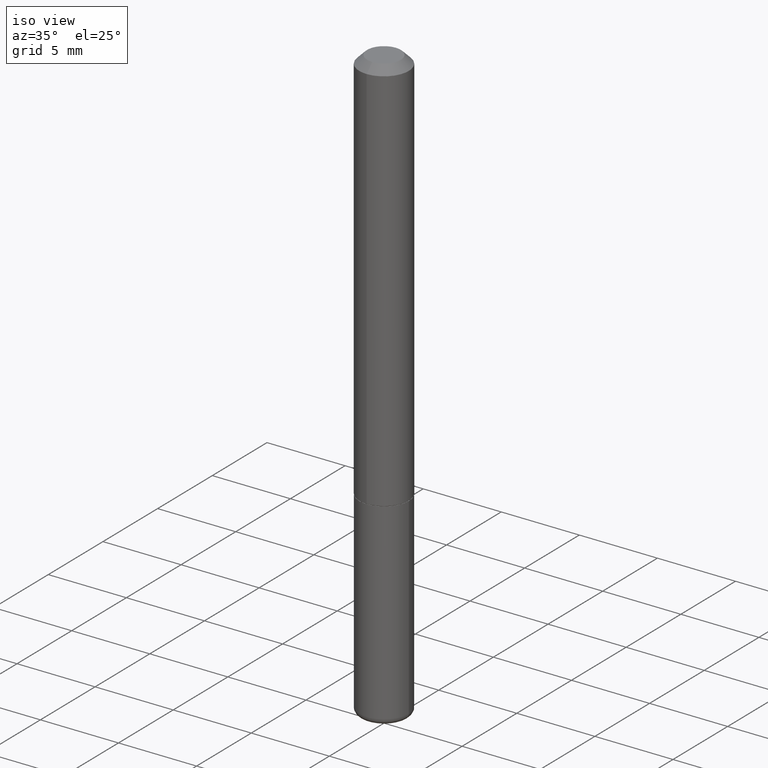
[diagram: clean part render]
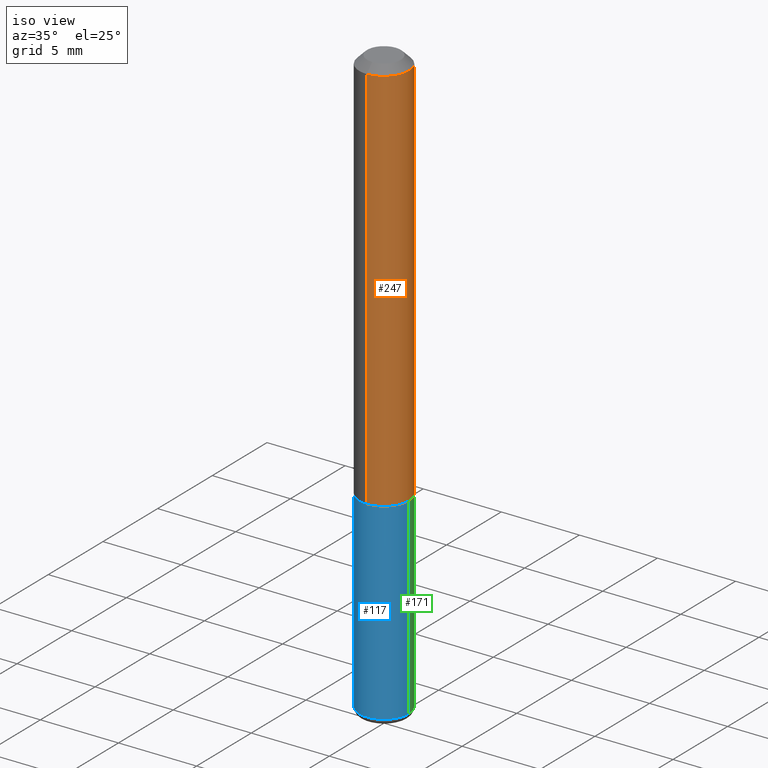
[diagram: same view with three faces highlighted in distinct colors, each labeled with its STEP entity id]
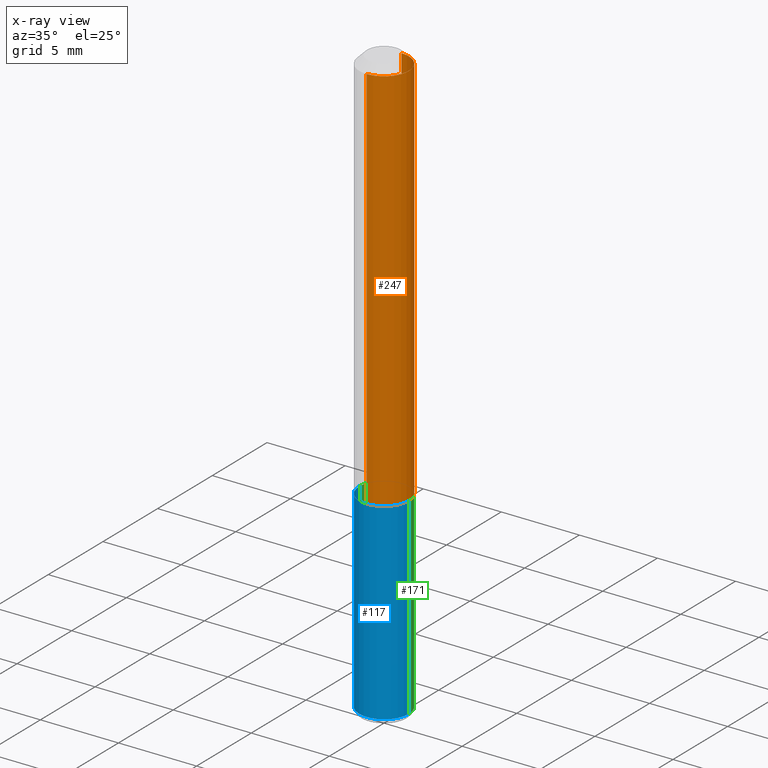
[diagram: x-ray of the same camera — body ghosted, the three highlighted faces saturated]
A machine part, iso view with three faces highlighted in distinct colors.
The next image is the same camera in x-ray (body ghosted, the three faces saturated) — at least one of them is partly hidden behind the body in this view.
Their STEP definitions:

[orange] entity #247 — the highlighted cylindrical surface (edge-blend (fillet) strip) has radius 1.5875 mm, axis along (-0, 0, 1).
#16 = CARTESIAN_POINT ( 'NONE',  ( 2.420431046656757310E-29, -3.520343303691815911E-15, -0.9989999999999998881 ) ) ;
#19 = DIRECTION ( 'NONE',  ( -2.422853900557315141E-29, 3.523867170862678489E-15, 1.000000000000000000 ) ) ;
#26 = CARTESIAN_POINT ( 'NONE',  ( 4.440892098500754352E-16, 0.06249999999999659994, -0.9990000000000002212 ) ) ;
#30 = DIRECTION ( 'NONE',  ( -6.982962677686266711E-15, -1.000000000000000000, 3.523867170862678884E-15 ) ) ;
#45 = CARTESIAN_POINT ( 'NONE',  ( 4.440892098500628134E-16, 0.06250000000000002776, -2.202416981789175288E-16 ) ) ;
#62 = VERTEX_POINT ( 'NONE', #108 ) ;
#76 = VECTOR ( 'NONE', #304, 39.37007874015748143 ) ;
#85 = VERTEX_POINT ( 'NONE', #104 ) ;
#91 = DIRECTION ( 'NONE',  ( -2.422853900557315141E-29, 3.523867170862678489E-15, 1.000000000000000000 ) ) ;
#97 = EDGE_CURVE ( 'NONE', #352, #260, #334, .T. ) ;
#104 = CARTESIAN_POINT ( 'NONE',  ( -4.364351673553682501E-16, -0.06250000000000363598, -0.9989999999999996660 ) ) ;
#108 = CARTESIAN_POINT ( 'NONE',  ( -4.287811248607198352E-16, -0.06250000000000001388, -0.01999999999999984776 ) ) ;
#114 = FACE_OUTER_BOUND ( 'NONE', #319, .T. ) ;
#122 = ORIENTED_EDGE ( 'NONE', *, *, #97, .T. ) ;
#128 = CARTESIAN_POINT ( 'NONE',  ( 0.000000000000000000, 0.000000000000000000, 0.000000000000000000 ) ) ;
#130 = CARTESIAN_POINT ( 'NONE',  ( 4.364351673553917187E-16, 0.06249999999999988204, -0.02000000000000029185 ) ) ;
#141 = EDGE_CURVE ( 'NONE', #62, #260, #365, .T. ) ;
#147 = EDGE_CURVE ( 'NONE', #85, #62, #245, .T. ) ;
#150 = DIRECTION ( 'NONE',  ( -2.422853900557315141E-29, 3.523867170862678489E-15, 1.000000000000000000 ) ) ;
#152 = CARTESIAN_POINT ( 'NONE',  ( 4.845707801114646817E-31, -7.047734341725380940E-17, -0.02000000000000006981 ) ) ;
#160 = AXIS2_PLACEMENT_3D ( 'NONE', #128, #91, #30 ) ;
#175 = CARTESIAN_POINT ( 'NONE',  ( -4.364351673553918666E-16, -0.06250000000000002776, 2.202416981789175288E-16 ) ) ;
#180 = ORIENTED_EDGE ( 'NONE', *, *, #147, .F. ) ;
#198 = EDGE_CURVE ( 'NONE', #85, #352, #354, .T. ) ;
#220 = ORIENTED_EDGE ( 'NONE', *, *, #198, .T. ) ;
#224 = AXIS2_PLACEMENT_3D ( 'NONE', #152, #150, #276 ) ;
#245 = LINE ( 'NONE', #175, #76 ) ;
#247 = ADVANCED_FACE ( 'NONE', ( #114 ), #368, .T. ) ;
#254 = VECTOR ( 'NONE', #302, 39.37007874015748143 ) ;
#260 = VERTEX_POINT ( 'NONE', #130 ) ;
#276 = DIRECTION ( 'NONE',  ( -6.982962677686265922E-15, -1.000000000000000000, 3.551402391763545142E-15 ) ) ;
#277 = DIRECTION ( 'NONE',  ( -6.982962677686265133E-15, -1.000000000000000000, 4.370956789862812472E-15 ) ) ;
#297 = ORIENTED_EDGE ( 'NONE', *, *, #141, .F. ) ;
#302 = DIRECTION ( 'NONE',  ( -2.422853900557315141E-29, 3.523867170862678489E-15, 1.000000000000000000 ) ) ;
#304 = DIRECTION ( 'NONE',  ( -2.422853900557315141E-29, 3.523867170862678489E-15, 1.000000000000000000 ) ) ;
#319 = EDGE_LOOP ( 'NONE', ( #220, #122, #297, #180 ) ) ;
#322 = AXIS2_PLACEMENT_3D ( 'NONE', #16, #19, #277 ) ;
#334 = LINE ( 'NONE', #45, #254 ) ;
#352 = VERTEX_POINT ( 'NONE', #26 ) ;
#354 = CIRCLE ( 'NONE', #322, 0.06250000000000012490 ) ;
#365 = CIRCLE ( 'NONE', #224, 0.06249999999999995143 ) ;
#368 = CYLINDRICAL_SURFACE ( 'NONE', #160, 0.06250000000000002776 ) ;

[blue] entity #117 — the highlighted cylindrical surface (edge-blend (fillet) strip) has radius 1.5875 mm, axis along (-0, 0, 1).
#20 = ORIENTED_EDGE ( 'NONE', *, *, #281, .T. ) ;
#47 = ORIENTED_EDGE ( 'NONE', *, *, #379, .F. ) ;
#52 = CARTESIAN_POINT ( 'NONE',  ( 0.06250000000000001388, -3.927916506198536858E-15, -0.9999999999999996669 ) ) ;
#54 = ORIENTED_EDGE ( 'NONE', *, *, #397, .T. ) ;
#60 = DIRECTION ( 'NONE',  ( 1.000000000000000000, -6.982962677686261189E-15, 0.000000000000000000 ) ) ;
#82 = FACE_OUTER_BOUND ( 'NONE', #155, .T. ) ;
#90 = CARTESIAN_POINT ( 'NONE',  ( -0.06250000000000001388, -3.894076353662544935E-15, -0.9999999999999996669 ) ) ;
#96 = CARTESIAN_POINT ( 'NONE',  ( 2.445468806185136036E-29, -3.491481338843144399E-15, -0.9999999999999996669 ) ) ;
#98 = VERTEX_POINT ( 'NONE', #52 ) ;
#115 = DIRECTION ( 'NONE',  ( -2.445468806185136597E-29, 3.491481338843145583E-15, 1.000000000000000000 ) ) ;
#117 = ADVANCED_FACE ( 'NONE', ( #82 ), #176, .T. ) ;
#124 = LINE ( 'NONE', #348, #314 ) ;
#132 = DIRECTION ( 'NONE',  ( -2.445468806185136877E-29, 3.491481338843145188E-15, 1.000000000000000000 ) ) ;
#140 = AXIS2_PLACEMENT_3D ( 'NONE', #223, #353, #60 ) ;
#151 = DIRECTION ( 'NONE',  ( 1.000000000000000000, -6.982962677686267499E-15, 4.876176775795935793E-29 ) ) ;
#155 = EDGE_LOOP ( 'NONE', ( #47, #54, #20, #287 ) ) ;
#158 = DIRECTION ( 'NONE',  ( -2.445468806185136877E-29, 3.491481338843145188E-15, 1.000000000000000000 ) ) ;
#176 = CYLINDRICAL_SURFACE ( 'NONE', #191, 0.06250000000000001388 ) ;
#191 = AXIS2_PLACEMENT_3D ( 'NONE', #311, #115, #151 ) ;
#216 = DIRECTION ( 'NONE',  ( -2.445468806185136597E-29, 3.491481338843145583E-15, 1.000000000000000000 ) ) ;
#218 = VERTEX_POINT ( 'NONE', #90 ) ;
#223 = CARTESIAN_POINT ( 'NONE',  ( 3.631521177184928138E-29, -5.184849788182071492E-15, -1.485000000000000098 ) ) ;
#251 = LINE ( 'NONE', #415, #289 ) ;
#255 = CIRCLE ( 'NONE', #360, 0.06250000000000001388 ) ;
#272 = VERTEX_POINT ( 'NONE', #385 ) ;
#281 = EDGE_CURVE ( 'NONE', #272, #98, #124, .T. ) ;
#287 = ORIENTED_EDGE ( 'NONE', *, *, #388, .F. ) ;
#289 = VECTOR ( 'NONE', #132, 39.37007874015748143 ) ;
#311 = CARTESIAN_POINT ( 'NONE',  ( 0.000000000000000000, 0.000000000000000000, 0.000000000000000000 ) ) ;
#314 = VECTOR ( 'NONE', #158, 39.37007874015748143 ) ;
#346 = DIRECTION ( 'NONE',  ( 1.000000000000000000, -6.982962677686269077E-15, 0.000000000000000000 ) ) ;
#348 = CARTESIAN_POINT ( 'NONE',  ( 0.06250000000000001388, -4.364351673553918173E-16, 3.047610484872460571E-30 ) ) ;
#353 = DIRECTION ( 'NONE',  ( -2.445468806185136597E-29, 3.491481338843145583E-15, 1.000000000000000000 ) ) ;
#359 = VERTEX_POINT ( 'NONE', #382 ) ;
#360 = AXIS2_PLACEMENT_3D ( 'NONE', #96, #216, #346 ) ;
#379 = EDGE_CURVE ( 'NONE', #359, #218, #251, .T. ) ;
#382 = CARTESIAN_POINT ( 'NONE',  ( -0.06250000000000001388, -4.740760578332009665E-15, -1.485000000000000098 ) ) ;
#385 = CARTESIAN_POINT ( 'NONE',  ( 0.06250000000000001388, -5.621284955537463950E-15, -1.485000000000000098 ) ) ;
#388 = EDGE_CURVE ( 'NONE', #218, #98, #255, .T. ) ;
#397 = EDGE_CURVE ( 'NONE', #359, #272, #414, .T. ) ;
#414 = CIRCLE ( 'NONE', #140, 0.06250000000000001388 ) ;
#415 = CARTESIAN_POINT ( 'NONE',  ( -0.06250000000000001388, 4.440892098500627148E-16, -3.074334431409317165E-30 ) ) ;

[green] entity #171 — the highlighted cylindrical surface (edge-blend (fillet) strip) has radius 1.5875 mm, axis along (-0, 0, 1).
#3 = CIRCLE ( 'NONE', #72, 0.06250000000000001388 ) ;
#21 = DIRECTION ( 'NONE',  ( -2.445468806185136597E-29, 3.491481338843145583E-15, 1.000000000000000000 ) ) ;
#23 = AXIS2_PLACEMENT_3D ( 'NONE', #400, #21, #339 ) ;
#52 = CARTESIAN_POINT ( 'NONE',  ( 0.06250000000000001388, -3.927916506198536858E-15, -0.9999999999999996669 ) ) ;
#58 = ORIENTED_EDGE ( 'NONE', *, *, #183, .F. ) ;
#72 = AXIS2_PLACEMENT_3D ( 'NONE', #241, #305, #309 ) ;
#80 = DIRECTION ( 'NONE',  ( -2.445468806185136597E-29, 3.491481338843145583E-15, 1.000000000000000000 ) ) ;
#90 = CARTESIAN_POINT ( 'NONE',  ( -0.06250000000000001388, -3.894076353662544935E-15, -0.9999999999999996669 ) ) ;
#98 = VERTEX_POINT ( 'NONE', #52 ) ;
#107 = AXIS2_PLACEMENT_3D ( 'NONE', #372, #80, #178 ) ;
#110 = ORIENTED_EDGE ( 'NONE', *, *, #379, .T. ) ;
#116 = CYLINDRICAL_SURFACE ( 'NONE', #107, 0.06250000000000001388 ) ;
#123 = EDGE_CURVE ( 'NONE', #272, #359, #182, .T. ) ;
#124 = LINE ( 'NONE', #348, #314 ) ;
#132 = DIRECTION ( 'NONE',  ( -2.445468806185136877E-29, 3.491481338843145188E-15, 1.000000000000000000 ) ) ;
#158 = DIRECTION ( 'NONE',  ( -2.445468806185136877E-29, 3.491481338843145188E-15, 1.000000000000000000 ) ) ;
#171 = ADVANCED_FACE ( 'NONE', ( #340 ), #116, .T. ) ;
#178 = DIRECTION ( 'NONE',  ( 1.000000000000000000, -6.982962677686267499E-15, 4.876176775795935793E-29 ) ) ;
#182 = CIRCLE ( 'NONE', #23, 0.06250000000000001388 ) ;
#183 = EDGE_CURVE ( 'NONE', #98, #218, #3, .T. ) ;
#218 = VERTEX_POINT ( 'NONE', #90 ) ;
#241 = CARTESIAN_POINT ( 'NONE',  ( 2.445468806185136036E-29, -3.491481338843144399E-15, -0.9999999999999996669 ) ) ;
#251 = LINE ( 'NONE', #415, #289 ) ;
#272 = VERTEX_POINT ( 'NONE', #385 ) ;
#278 = EDGE_LOOP ( 'NONE', ( #383, #110, #58, #380 ) ) ;
#281 = EDGE_CURVE ( 'NONE', #272, #98, #124, .T. ) ;
#289 = VECTOR ( 'NONE', #132, 39.37007874015748143 ) ;
#305 = DIRECTION ( 'NONE',  ( -2.445468806185136597E-29, 3.491481338843145583E-15, 1.000000000000000000 ) ) ;
#309 = DIRECTION ( 'NONE',  ( 1.000000000000000000, -6.982962677686269077E-15, 0.000000000000000000 ) ) ;
#314 = VECTOR ( 'NONE', #158, 39.37007874015748143 ) ;
#339 = DIRECTION ( 'NONE',  ( 1.000000000000000000, -6.982962677686261189E-15, 0.000000000000000000 ) ) ;
#340 = FACE_OUTER_BOUND ( 'NONE', #278, .T. ) ;
#348 = CARTESIAN_POINT ( 'NONE',  ( 0.06250000000000001388, -4.364351673553918173E-16, 3.047610484872460571E-30 ) ) ;
#359 = VERTEX_POINT ( 'NONE', #382 ) ;
#372 = CARTESIAN_POINT ( 'NONE',  ( 0.000000000000000000, 0.000000000000000000, 0.000000000000000000 ) ) ;
#379 = EDGE_CURVE ( 'NONE', #359, #218, #251, .T. ) ;
#380 = ORIENTED_EDGE ( 'NONE', *, *, #281, .F. ) ;
#382 = CARTESIAN_POINT ( 'NONE',  ( -0.06250000000000001388, -4.740760578332009665E-15, -1.485000000000000098 ) ) ;
#383 = ORIENTED_EDGE ( 'NONE', *, *, #123, .T. ) ;
#385 = CARTESIAN_POINT ( 'NONE',  ( 0.06250000000000001388, -5.621284955537463950E-15, -1.485000000000000098 ) ) ;
#400 = CARTESIAN_POINT ( 'NONE',  ( 3.631521177184928138E-29, -5.184849788182071492E-15, -1.485000000000000098 ) ) ;
#415 = CARTESIAN_POINT ( 'NONE',  ( -0.06250000000000001388, 4.440892098500627148E-16, -3.074334431409317165E-30 ) ) ;